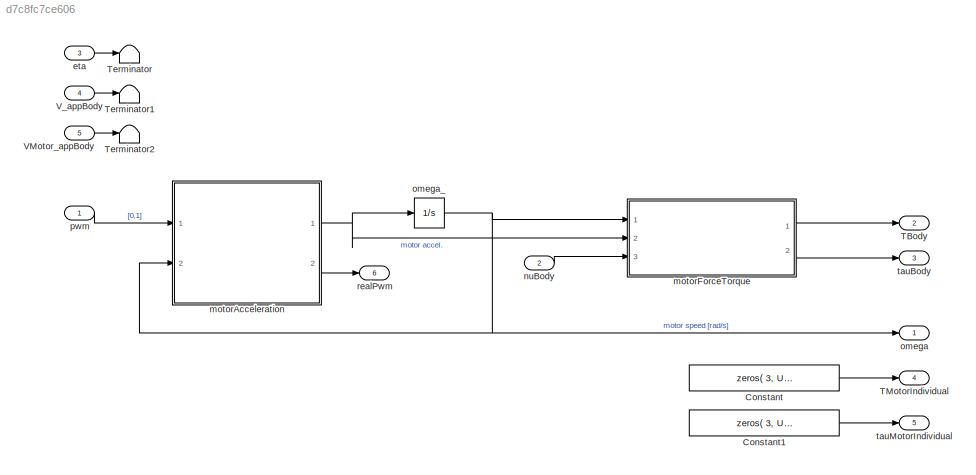
MODEL slx_d7c8fc7ce606
KIND model
CONFIG AbsTol = auto
CONFIG EnableMultiTasking = on
CONFIG FixedStep = auto
CONFIG MaxStep = auto
CONFIG MinStep = auto
CONFIG RelTol = 1e-3
CONFIG SampleTimeConstraint = Unconstrained
CONFIG SolverName = VariableStepAuto
CONFIG StartTime = 0.0
CONFIG StopTime = 10.0
BLOCK [Constant] Constant
  Value = zeros( 3, Uav.N_ROTORS )
BLOCK [Constant] Constant1
  Value = zeros( 3, Uav.N_ROTORS )
BLOCK [Outport] TBody
  Port = 2
  Unit = N
  VectorParamsAs1DForOutWhenUnconnected = off
BLOCK [Outport] TMotorIndividual
  Port = 4
  Unit = N
  VectorParamsAs1DForOutWhenUnconnected = off
BLOCK [Terminator] Terminator
BLOCK [Terminator] Terminator1
BLOCK [Terminator] Terminator2
BLOCK [Inport] VMotor_appBody
  Port = 5
  PortDimensions = [3,Uav.N_ROTORS]
  Unit = m/s
BLOCK [Inport] V_appBody
  Port = 4
  PortDimensions = 3
  Unit = m/s
BLOCK [Inport] eta
  Port = 3
  PortDimensions = 3
  Unit = rad
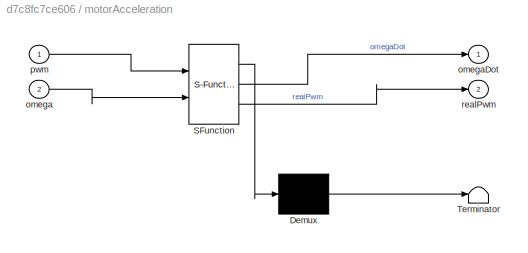
BLOCK [SubSystem] motorAcceleration
  ErrorFcn = Stateflow.Translate.translate
  PermitHierarchicalResolution = ExplicitOnly
  Ports = [2, 2]
  RequestExecContextInheritance = off
  SFBlockType = MATLAB Function
  TreatAsAtomicUnit = on
BLOCK [Demux] motorAcceleration/ Demux 
  Outputs = 1
  Ports = [1, 1]
BLOCK [S-Function] motorAcceleration/ SFunction 
  EnableBusSupport = on
  FunctionName = sf_sfun
  PortCounts = [2 3]
  Ports = [2, 3]
  SFcnIsStateOwnerBlock = off
  SFunctionDeploymentMode = off
  Tag = Stateflow S-Function 19
BLOCK [Terminator] motorAcceleration/ Terminator 
BLOCK [Inport] motorAcceleration/omega
  Port = 2
BLOCK [Outport] motorAcceleration/omegaDot
  VectorParamsAs1DForOutWhenUnconnected = off
BLOCK [Inport] motorAcceleration/pwm
BLOCK [Outport] motorAcceleration/realPwm
  Port = 2
  VectorParamsAs1DForOutWhenUnconnected = off
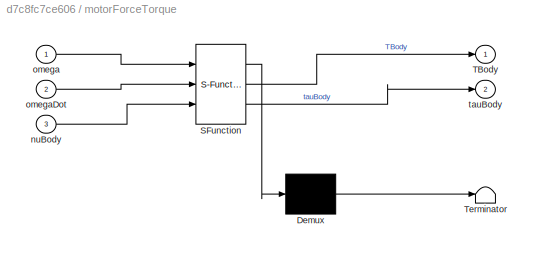
BLOCK [SubSystem] motorForceTorque
  ErrorFcn = Stateflow.Translate.translate
  PermitHierarchicalResolution = ExplicitOnly
  Ports = [3, 2]
  RequestExecContextInheritance = off
  SFBlockType = MATLAB Function
  TreatAsAtomicUnit = on
BLOCK [Demux] motorForceTorque/ Demux 
  Outputs = 1
  Ports = [1, 1]
BLOCK [S-Function] motorForceTorque/ SFunction 
  EnableBusSupport = on
  FunctionName = sf_sfun
  Parameters = Motor,Uav
  PortCounts = [3 3]
  Ports = [3, 3]
  SFcnIsStateOwnerBlock = off
  SFunctionDeploymentMode = off
  Tag = Stateflow S-Function 18
BLOCK [Terminator] motorForceTorque/ Terminator 
BLOCK [Outport] motorForceTorque/TBody
  VectorParamsAs1DForOutWhenUnconnected = off
BLOCK [Inport] motorForceTorque/nuBody
  Port = 3
BLOCK [Inport] motorForceTorque/omega
BLOCK [Inport] motorForceTorque/omegaDot
  Port = 2
BLOCK [Outport] motorForceTorque/tauBody
  Port = 2
  VectorParamsAs1DForOutWhenUnconnected = off
BLOCK [Inport] nuBody
  Port = 2
BLOCK [Outport] omega
  Unit = rad/s
  VectorParamsAs1DForOutWhenUnconnected = off
BLOCK [Integrator] omega_
  ContinuousStateAttributes = 'omega'
  InitialCondition = Initial.OMEGA
  LimitOutput = on
  LowerSaturationLimit = zeros(size(Initial.OMEGA))
  Ports = [1, 1]
BLOCK [Inport] pwm
  PortDimensions = Uav.N_ROTORS
BLOCK [Outport] realPwm
  Port = 6
  VectorParamsAs1DForOutWhenUnconnected = off
BLOCK [Outport] tauBody
  Port = 3
  Unit = N*m
  VectorParamsAs1DForOutWhenUnconnected = off
BLOCK [Outport] tauMotorIndividual
  Port = 5
  Unit = N*m
  VectorParamsAs1DForOutWhenUnconnected = off
LINE Constant1:1 -> tauMotorIndividual:1
LINE Constant:1 -> TMotorIndividual:1
LINE VMotor_appBody:1 -> Terminator2:1
LINE V_appBody:1 -> Terminator1:1
LINE eta:1 -> Terminator:1
NET motorAcceleration:1 -> motorForceTorque:2, omega_:1
LINE motorAcceleration:2 -> realPwm:1
LINE motorForceTorque:1 -> TBody:1
LINE motorForceTorque:2 -> tauBody:1
LINE nuBody:1 -> motorForceTorque:3
NET omega_:1 -> motorAcceleration:2, motorForceTorque:1, omega:1
LINE pwm:1 -> motorAcceleration:1
note: NET lines group one-source signal fan-out (src -> all destinations, sorted); 1:1 wires keep LINE
CHART motorForceTorque states=1 transitions=1
  STATE_LABEL 'eML_blk_kernel()'
  STATE_LABEL 'SCRIPT:\nfunction [TBody, tauBody] = motorForceTorque(...\n    omega, omegaDot, nuBody, Motor, Uav)\n%#codegen\n\n% Make assertions to avoid code generation errors\nassert(Uav.N_ROTORS < 16);\n\n%% Thrust and differential torque\n\n% Concatenated motor force/torque vectors in respective motor frame\n% eg. TMotor = [TMotor1, TMotor2, ..., TMotorN]\n% where: - N is the number of rotors\n%        - TMotorx (x ∈ [...<+1926ch>'
CHART motorAcceleration states=1 transitions=1
  STATE_LABEL 'eML_blk_kernel()'
  STATE_LABEL 'SCRIPT:\nfunction [omegaDot, realPwm]  = motorRotDynamics( pwm, omega )\n%#codegen\n\nrealPwm = (1000 * pwm + 1000);\n\nrotorTimeConst = 7.006512e-02;\nomegaRef = 0.84 * ( 7.969173e-1.*realPwm - 6.528579e2 );\n\nomegaDot = (omegaRef - omega) / rotorTimeConst;\nend'
CHART  states=0 transitions=0
CHART  states=0 transitions=0
